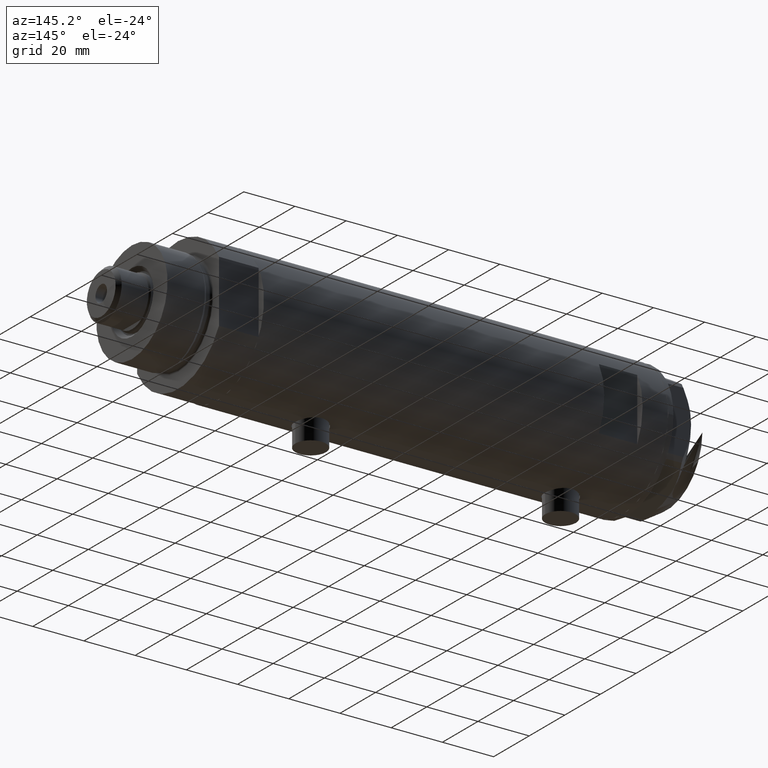
[diagram: clean part render]
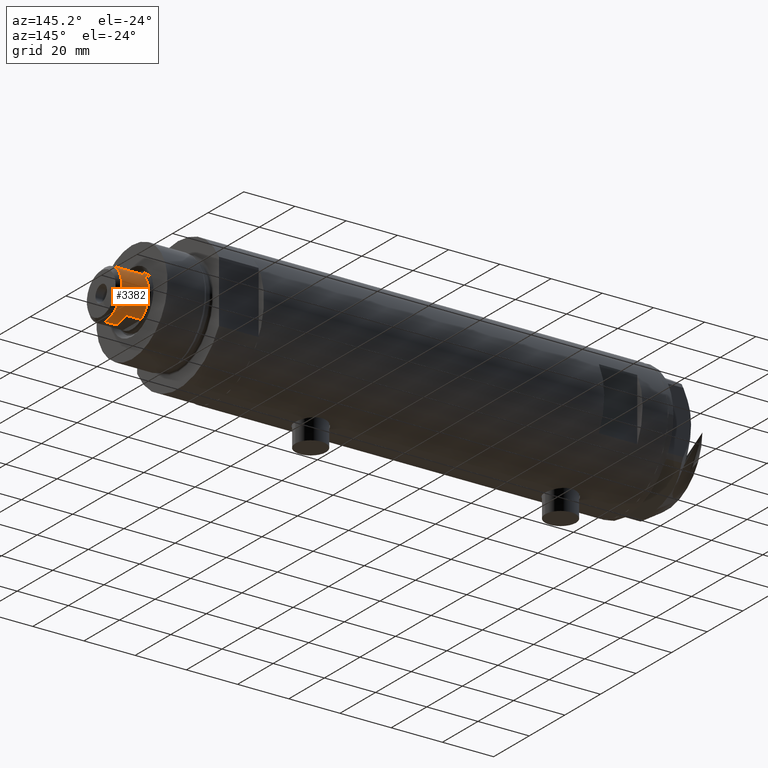
[diagram: same view with one face highlighted and labeled with its STEP entity id]
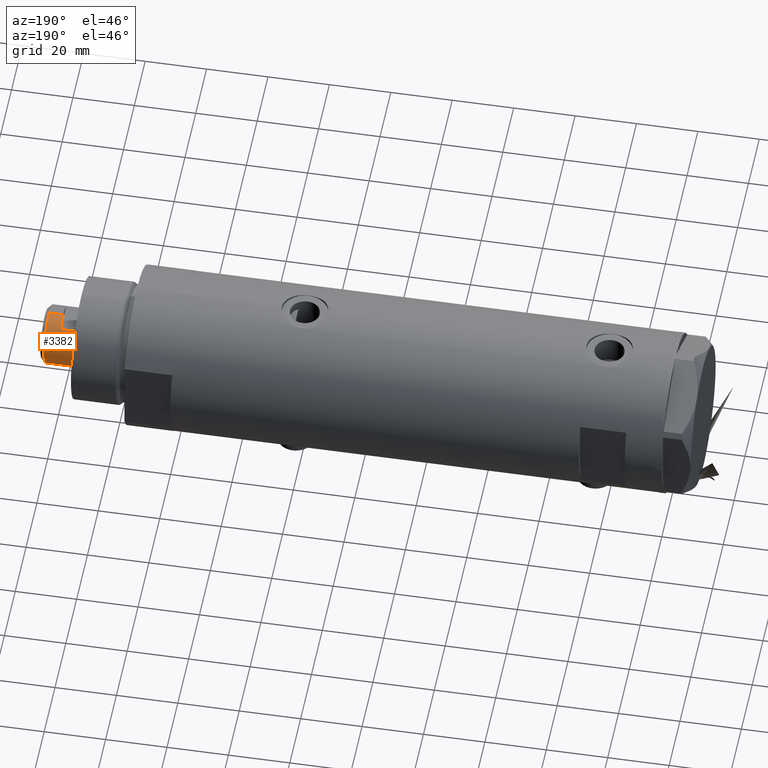
[diagram: same view with one face highlighted and labeled with its STEP entity id]
A machine part, auxiliary view. The second image highlights one B-rep face of the part: STEP entity #3382.
A second angle (auxiliary view) of the same face is appended — the face is thin or edge-on in the first view.
In plain terms, the highlighted cylindrical surface (edge-blend (fillet) strip) has radius 9.5 mm, axis along (-1, -0, 0).
Its self-contained STEP definition (entity closure, byte-faithful):
#39 = CIRCLE ( 'NONE', #337, 9.500000000000000000 ) ;
#124 = ORIENTED_EDGE ( 'NONE', *, *, #2479, .T. ) ;
#177 = VERTEX_POINT ( 'NONE', #4560 ) ;
#246 = DIRECTION ( 'NONE',  ( 1.000000000000000000, 0.000000000000000000, 0.000000000000000000 ) ) ;
#311 = ORIENTED_EDGE ( 'NONE', *, *, #512, .T. ) ;
#337 = AXIS2_PLACEMENT_3D ( 'NONE', #4086, #2947, #341 ) ;
#339 = CYLINDRICAL_SURFACE ( 'NONE', #1447, 9.500000000000001776 ) ;
#341 = DIRECTION ( 'NONE',  ( 1.000000000000000000, 0.000000000000000000, 0.000000000000000000 ) ) ;
#345 = EDGE_CURVE ( 'NONE', #177, #3554, #2833, .T. ) ;
#498 = DIRECTION ( 'NONE',  ( 1.000000000000000000, 0.000000000000000000, 0.000000000000000000 ) ) ;
#512 = EDGE_CURVE ( 'NONE', #3490, #3476, #3171, .T. ) ;
#529 = DIRECTION ( 'NONE',  ( -0.000000000000000000, -0.000000000000000000, -1.000000000000000000 ) ) ;
#559 = EDGE_CURVE ( 'NONE', #3476, #177, #3914, .T. ) ;
#742 = CARTESIAN_POINT ( 'NONE',  ( 0.000000000000000000, 0.000000000000000000, 167.5999999999999943 ) ) ;
#764 = DIRECTION ( 'NONE',  ( 0.000000000000000000, 0.000000000000000000, 1.000000000000000000 ) ) ;
#792 = CARTESIAN_POINT ( 'NONE',  ( -9.500000000000001776, 0.000000000000000000, 178.2000000000000455 ) ) ;
#818 = VERTEX_POINT ( 'NONE', #4371 ) ;
#912 = VERTEX_POINT ( 'NONE', #792 ) ;
#1035 = CARTESIAN_POINT ( 'NONE',  ( -7.982950582334830791, 5.149999999999999467, 173.5999999999999943 ) ) ;
#1044 = CIRCLE ( 'NONE', #3728, 9.500000000000001776 ) ;
#1128 = FACE_OUTER_BOUND ( 'NONE', #2384, .T. ) ;
#1158 = CARTESIAN_POINT ( 'NONE',  ( -9.500000000000000000, 0.000000000000000000, 173.5999999999999943 ) ) ;
#1307 = CARTESIAN_POINT ( 'NONE',  ( 7.982950582334830791, 5.149999999999999467, 173.5999999999999943 ) ) ;
#1353 = DIRECTION ( 'NONE',  ( -0.000000000000000000, -0.000000000000000000, -1.000000000000000000 ) ) ;
#1358 = CARTESIAN_POINT ( 'NONE',  ( 0.000000000000000000, 0.000000000000000000, 178.2000000000000455 ) ) ;
#1385 = DIRECTION ( 'NONE',  ( -0.000000000000000000, -0.000000000000000000, -1.000000000000000000 ) ) ;
#1447 = AXIS2_PLACEMENT_3D ( 'NONE', #4084, #2224, #2648 ) ;
#1507 = AXIS2_PLACEMENT_3D ( 'NONE', #3802, #2751, #498 ) ;
#1618 = CARTESIAN_POINT ( 'NONE',  ( -7.982950582334830791, 5.149999999999999467, 173.5999999999999943 ) ) ;
#1619 = EDGE_CURVE ( 'NONE', #3529, #3554, #3268, .T. ) ;
#1647 = AXIS2_PLACEMENT_3D ( 'NONE', #742, #764, #2682 ) ;
#1844 = ORIENTED_EDGE ( 'NONE', *, *, #1619, .F. ) ;
#2164 = CARTESIAN_POINT ( 'NONE',  ( 7.982950582334830791, 5.149999999999999467, 173.5999999999999943 ) ) ;
#2224 = DIRECTION ( 'NONE',  ( -0.000000000000000000, -0.000000000000000000, -1.000000000000000000 ) ) ;
#2248 = ORIENTED_EDGE ( 'NONE', *, *, #3669, .T. ) ;
#2260 = ORIENTED_EDGE ( 'NONE', *, *, #3901, .T. ) ;
#2300 = VECTOR ( 'NONE', #1385, 1000.000000000000000 ) ;
#2322 = CARTESIAN_POINT ( 'NONE',  ( 9.500000000000001776, 1.163414459189985682E-15, 173.5999999999999943 ) ) ;
#2384 = EDGE_LOOP ( 'NONE', ( #2248, #124, #311, #3949, #3977, #1844, #2260, #2848 ) ) ;
#2456 = VERTEX_POINT ( 'NONE', #1158 ) ;
#2479 = EDGE_CURVE ( 'NONE', #818, #3490, #4182, .T. ) ;
#2648 = DIRECTION ( 'NONE',  ( -1.000000000000000000, 0.000000000000000000, 0.000000000000000000 ) ) ;
#2682 = DIRECTION ( 'NONE',  ( 1.000000000000000000, 0.000000000000000000, 0.000000000000000000 ) ) ;
#2751 = DIRECTION ( 'NONE',  ( 0.000000000000000000, 0.000000000000000000, 1.000000000000000000 ) ) ;
#2833 = CIRCLE ( 'NONE', #1647, 9.500000000000090594 ) ;
#2848 = ORIENTED_EDGE ( 'NONE', *, *, #4809, .F. ) ;
#2947 = DIRECTION ( 'NONE',  ( 0.000000000000000000, 0.000000000000000000, 1.000000000000000000 ) ) ;
#3098 = CARTESIAN_POINT ( 'NONE',  ( 9.500000000000000000, 1.163414459189985485E-15, 173.5999999999999943 ) ) ;
#3171 = CIRCLE ( 'NONE', #1507, 9.500000000000000000 ) ;
#3268 = LINE ( 'NONE', #1035, #2300 ) ;
#3382 = ADVANCED_FACE ( 'NONE', ( #1128 ), #339, .T. ) ;
#3452 = DIRECTION ( 'NONE',  ( -0.000000000000000000, -0.000000000000000000, -1.000000000000000000 ) ) ;
#3476 = VERTEX_POINT ( 'NONE', #2164 ) ;
#3490 = VERTEX_POINT ( 'NONE', #3098 ) ;
#3529 = VERTEX_POINT ( 'NONE', #1618 ) ;
#3554 = VERTEX_POINT ( 'NONE', #4869 ) ;
#3592 = VECTOR ( 'NONE', #529, 1000.000000000000000 ) ;
#3669 = EDGE_CURVE ( 'NONE', #912, #818, #1044, .T. ) ;
#3728 = AXIS2_PLACEMENT_3D ( 'NONE', #1358, #4036, #246 ) ;
#3802 = CARTESIAN_POINT ( 'NONE',  ( 0.000000000000000000, 0.000000000000000000, 173.5999999999999943 ) ) ;
#3901 = EDGE_CURVE ( 'NONE', #3529, #2456, #39, .T. ) ;
#3914 = LINE ( 'NONE', #1307, #4719 ) ;
#3949 = ORIENTED_EDGE ( 'NONE', *, *, #559, .T. ) ;
#3977 = ORIENTED_EDGE ( 'NONE', *, *, #345, .T. ) ;
#4036 = DIRECTION ( 'NONE',  ( 0.000000000000000000, 0.000000000000000000, -1.000000000000000000 ) ) ;
#4084 = CARTESIAN_POINT ( 'NONE',  ( 0.000000000000000000, 0.000000000000000000, 173.5999999999999943 ) ) ;
#4086 = CARTESIAN_POINT ( 'NONE',  ( 0.000000000000000000, 0.000000000000000000, 173.5999999999999943 ) ) ;
#4182 = LINE ( 'NONE', #2322, #4340 ) ;
#4270 = CARTESIAN_POINT ( 'NONE',  ( -9.500000000000001776, 0.000000000000000000, 173.5999999999999943 ) ) ;
#4340 = VECTOR ( 'NONE', #3452, 1000.000000000000000 ) ;
#4371 = CARTESIAN_POINT ( 'NONE',  ( 9.500000000000001776, 1.163414459189985682E-15, 178.2000000000000455 ) ) ;
#4560 = CARTESIAN_POINT ( 'NONE',  ( 7.982950582334830791, 5.149999999999999467, 167.5999999999999943 ) ) ;
#4644 = LINE ( 'NONE', #4270, #3592 ) ;
#4719 = VECTOR ( 'NONE', #1353, 1000.000000000000000 ) ;
#4809 = EDGE_CURVE ( 'NONE', #912, #2456, #4644, .T. ) ;
#4869 = CARTESIAN_POINT ( 'NONE',  ( -7.982950582334829015, 5.150000000000165556, 167.5999999999999943 ) ) ;